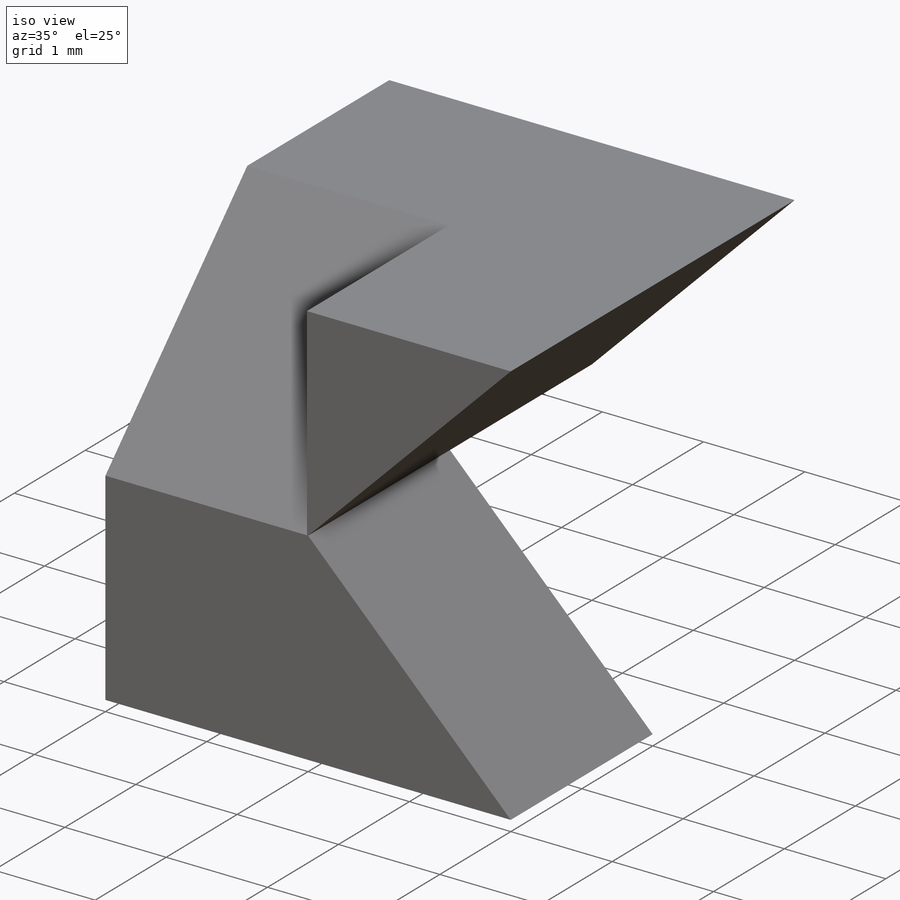
[diagram: iso view]
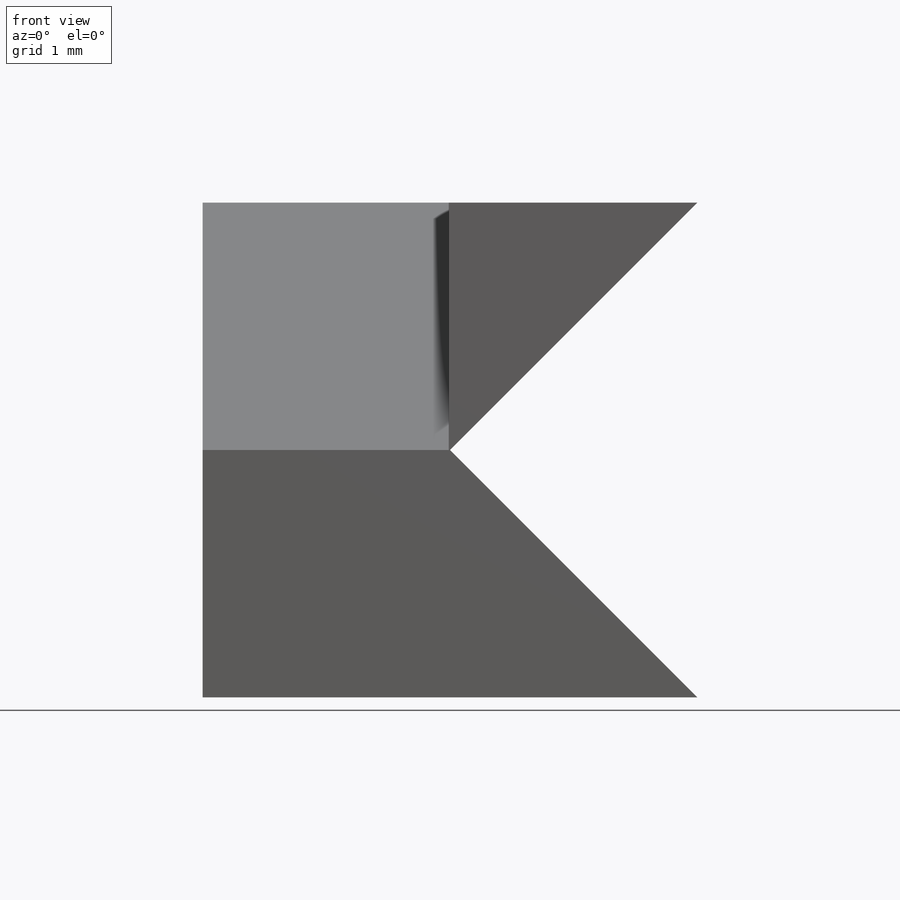
[diagram: front view]
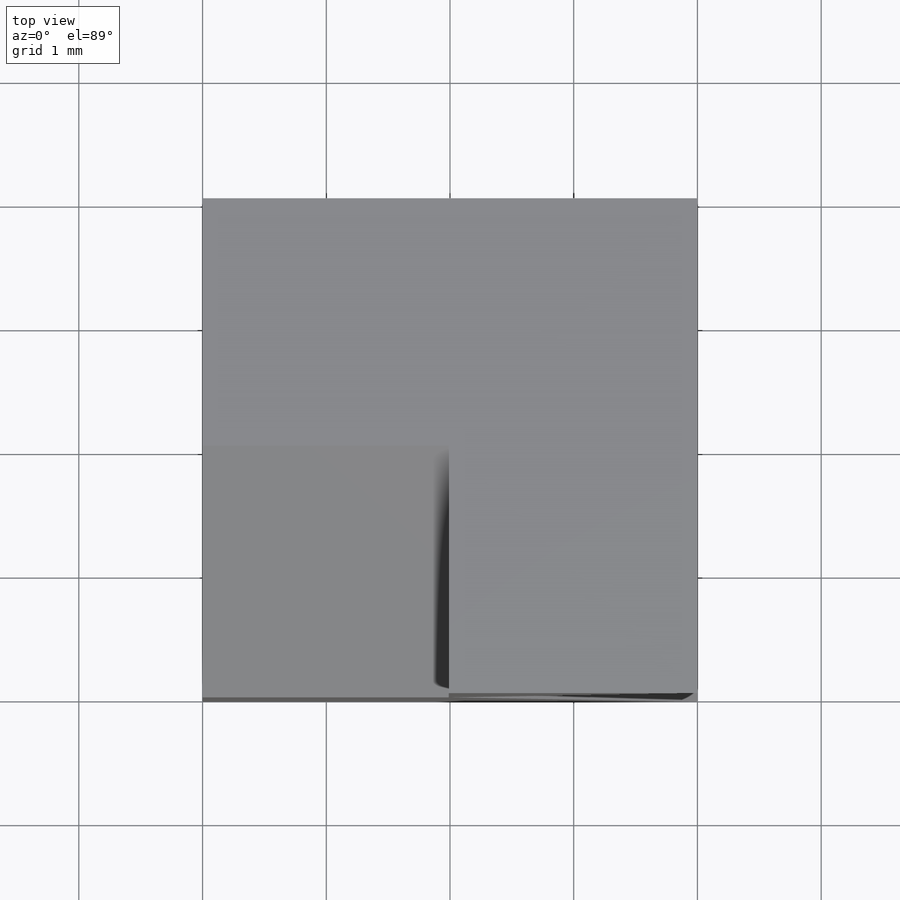
[diagram: top view]
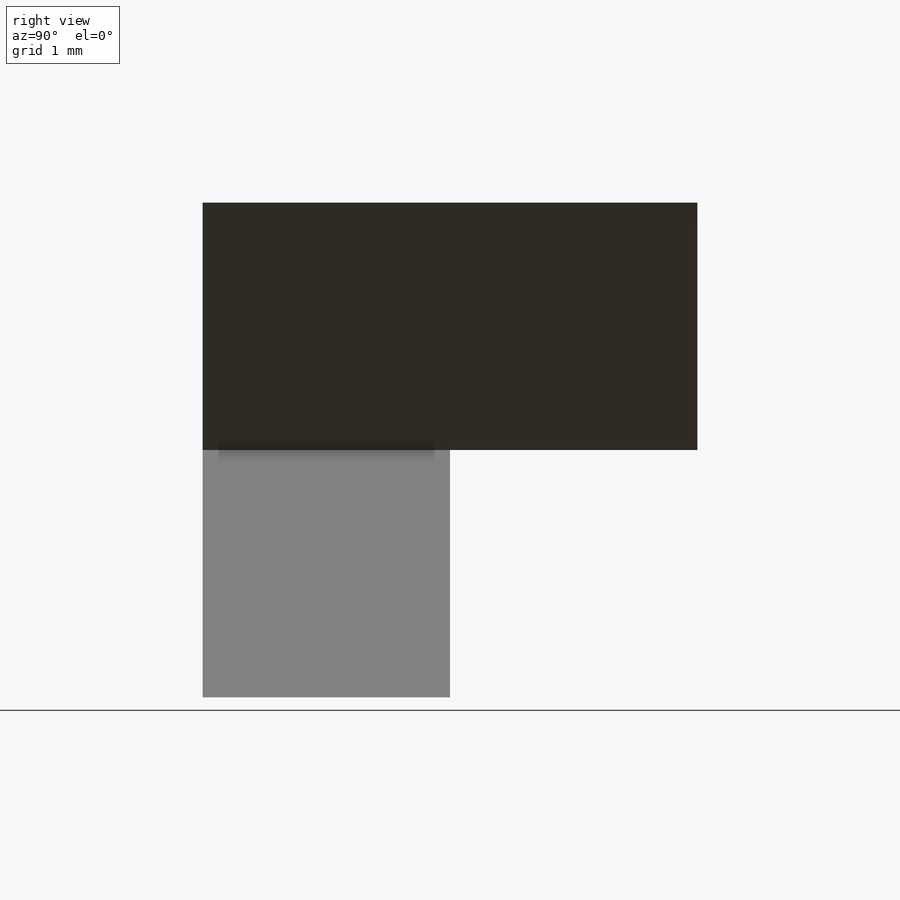
[diagram: right view]
SOLIDWORKS PART (.sldprt)
format: sldprt  version: not decoded by parser v0  size: 148,992 bytes
history: native  units: mm
features: sketch x4, cut_extrude x3, material x1, extrude x1 (+13 scaffold rows collapsed)
feature tree (22):
  scaffold x13  (default folders/planes/origin — collapsed)
  material  "Material <not specified>"
  sketch  "Sketch1"  dims[D1=4.0mm D2=4.0mm]
  extrude  "Boss-Extrude1"  Depth=4mm
  sketch  "Sketch2"  dims[D1=2.0mm D2=~2.828427mm]
  cut_extrude  "Cut-Extrude1"  Depth=4mm
  sketch  "Sketch5"  dims[D1=2.0mm D2=2.0mm]
  cut_extrude  "Cut-Extrude7"  Depth=1.99mm
  sketch  "Sketch6"  dims[D1=2.0mm D2=2.0mm]
  cut_extrude  "Cut-Extrude8"  Depth=21.99mm
decode coverage: 8 of 8 modeling features carry decoded parameters
note: ~ marks probable driven/reference dimensions
note: suppression state not decoded; provenance and decode notes live in map.json
